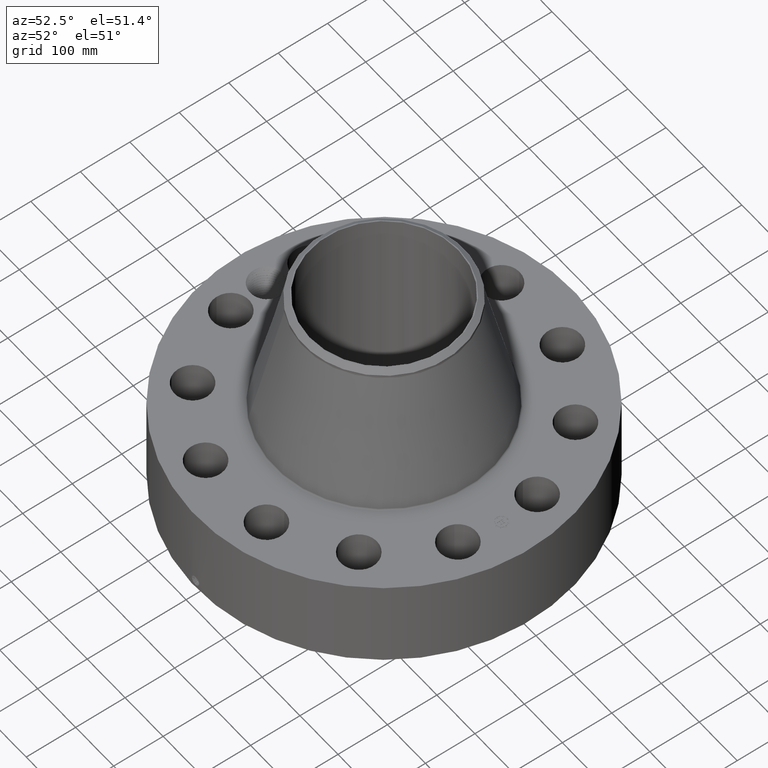
[diagram: clean part render]
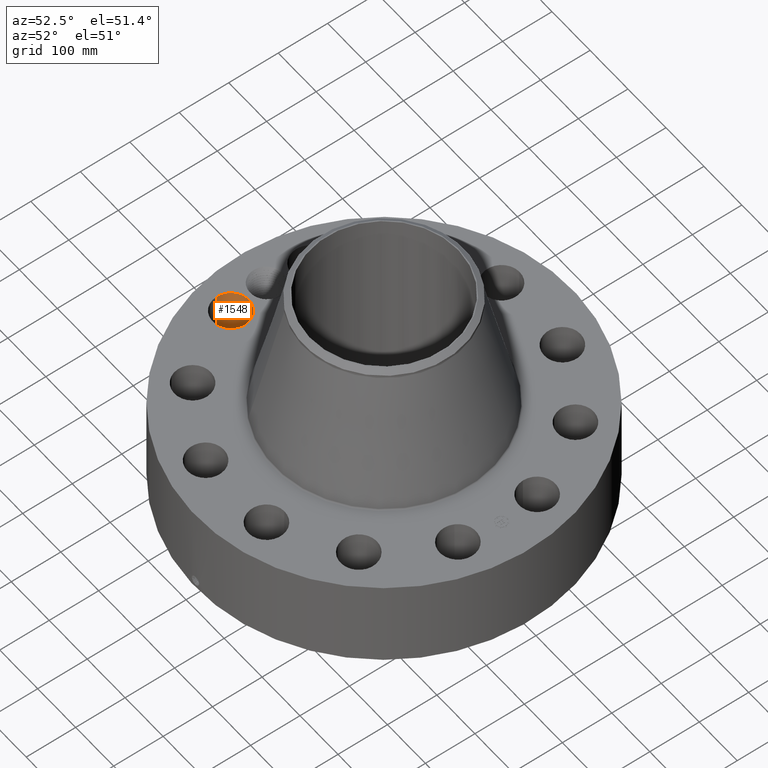
[diagram: same view with one face highlighted and labeled with its STEP entity id]
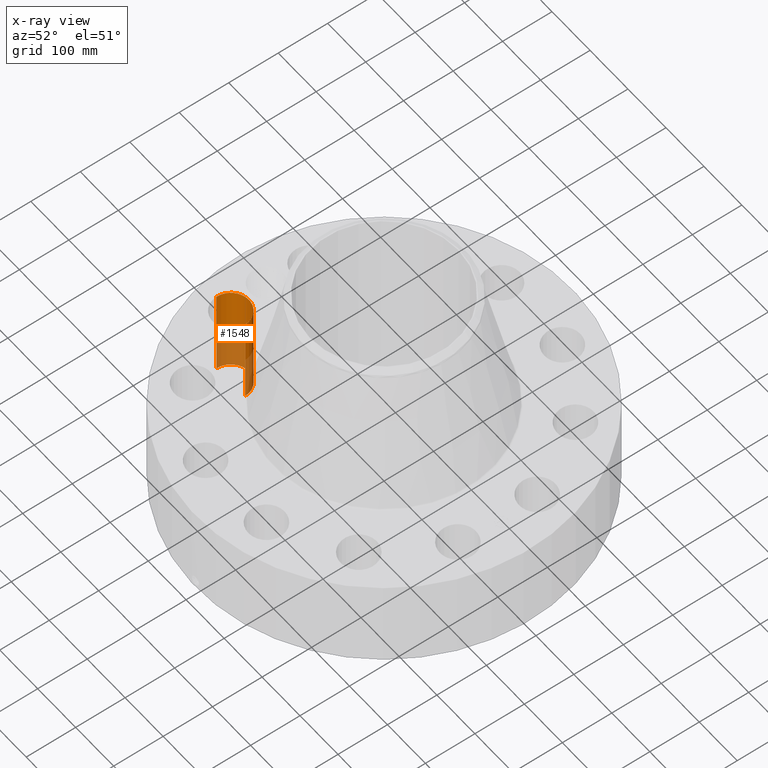
[diagram: x-ray of the same camera — body ghosted, the highlighted face saturated]
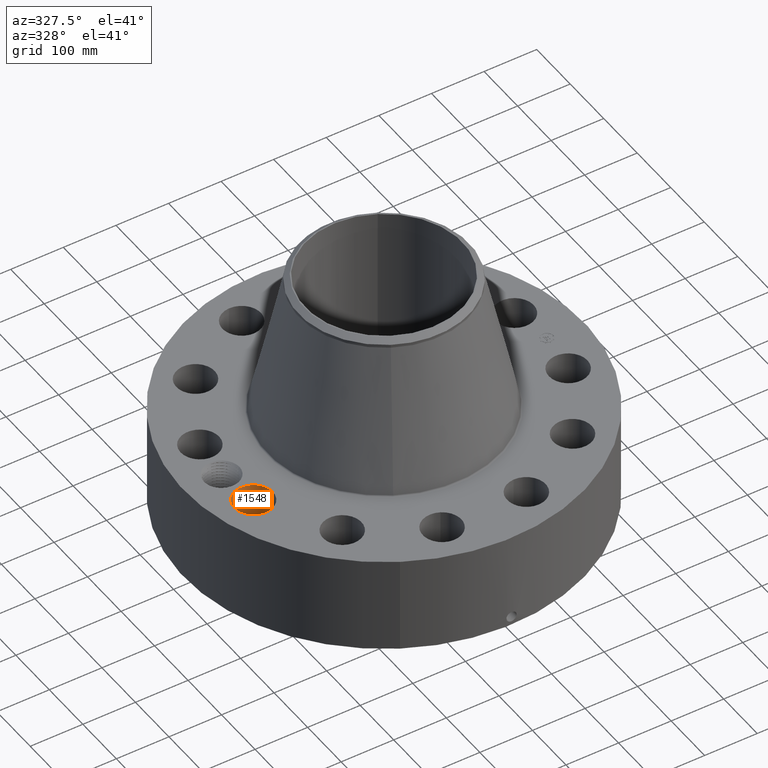
[diagram: same view with one face highlighted and labeled with its STEP entity id]
A machine part, auxiliary view. The second image highlights one B-rep face of the part: STEP entity #1548.
The next image is the same camera in x-ray: the body ghosted, the highlighted face saturated — about 48% of this face is hidden behind the body in this view.
A second angle (auxiliary view) of the same face is appended — the face is thin or edge-on in the first view.
In plain terms, the highlighted cylindrical surface (edge-blend (fillet) strip) has radius 36.576 mm, axis along (-0, 0, -1).
Its self-contained STEP definition (entity closure, byte-faithful):
#359=AXIS2_PLACEMENT_3D('Circle Axis2P3D',#357,#358,$) ;
#757=AXIS2_PLACEMENT_3D('Circle Axis2P3D',#755,#756,$) ;
#1523=AXIS2_PLACEMENT_3D('Cylinder Axis2P3D',#1520,#1521,#1522) ;
#352=CARTESIAN_POINT('Vertex',(-10.3350367735,-3.12102507699,0.250000000001)) ;
#354=CARTESIAN_POINT('Vertex',(-13.2142348715,-3.18898324263,0.250000000001)) ;
#357=CARTESIAN_POINT('Axis2P3D Location',(-11.7746358225,-3.15500415981,0.250000000001)) ;
#755=CARTESIAN_POINT('Axis2P3D Location',(-11.7746358225,-3.15500415981,7.50000000003)) ;
#759=CARTESIAN_POINT('Vertex',(-13.2142348715,-3.18898324263,7.50000000003)) ;
#761=CARTESIAN_POINT('Vertex',(-10.3350367735,-3.12102507699,7.50000000003)) ;
#1520=CARTESIAN_POINT('Axis2P3D Location',(-11.7746358225,-3.15500415981,7.49606299216)) ;
#1525=CARTESIAN_POINT('Line Origine',(-10.3350367735,-3.12102507699,3.87500000002)) ;
#1530=CARTESIAN_POINT('Line Origine',(-13.2142348715,-3.18898324263,3.87500000002)) ;
#358=DIRECTION('Axis2P3D Direction',(0.,0.,-0.0393700787402)) ;
#756=DIRECTION('Axis2P3D Direction',(0.,0.,-0.0393700787402)) ;
#1521=DIRECTION('Axis2P3D Direction',(-0.,0.,-0.0393700787402)) ;
#1522=DIRECTION('Axis2P3D XDirection',(-0.039359116607,-0.000928999420902,0.)) ;
#1526=DIRECTION('Vector Direction',(0.,0.,-0.0393700787402)) ;
#1531=DIRECTION('Vector Direction',(0.,0.,-0.0393700787402)) ;
#1527=VECTOR('Line Direction',#1526,0.0393700787402) ;
#1532=VECTOR('Line Direction',#1531,0.0393700787402) ;
#1543=ORIENTED_EDGE('',*,*,#1534,.F.) ;
#1544=ORIENTED_EDGE('',*,*,#361,.T.) ;
#1545=ORIENTED_EDGE('',*,*,#1529,.T.) ;
#1546=ORIENTED_EDGE('',*,*,#763,.F.) ;
#1548=ADVANCED_FACE('PartBody',(#1547),#1524,.F.) ;
#360=CIRCLE('generated circle',#359,1.44000000001) ;
#758=CIRCLE('generated circle',#757,1.44000000001) ;
#1524=CYLINDRICAL_SURFACE('generated cylinder',#1523,1.44000000001) ;
#361=EDGE_CURVE('',#355,#353,#360,.T.) ;
#763=EDGE_CURVE('',#760,#762,#758,.T.) ;
#1529=EDGE_CURVE('',#353,#762,#1528,.F.) ;
#1534=EDGE_CURVE('',#355,#760,#1533,.F.) ;
#1542=EDGE_LOOP('',(#1543,#1544,#1545,#1546)) ;
#1547=FACE_OUTER_BOUND('',#1542,.T.) ;
#1528=LINE('Line',#1525,#1527) ;
#1533=LINE('Line',#1530,#1532) ;
#353=VERTEX_POINT('',#352) ;
#355=VERTEX_POINT('',#354) ;
#760=VERTEX_POINT('',#759) ;
#762=VERTEX_POINT('',#761) ;